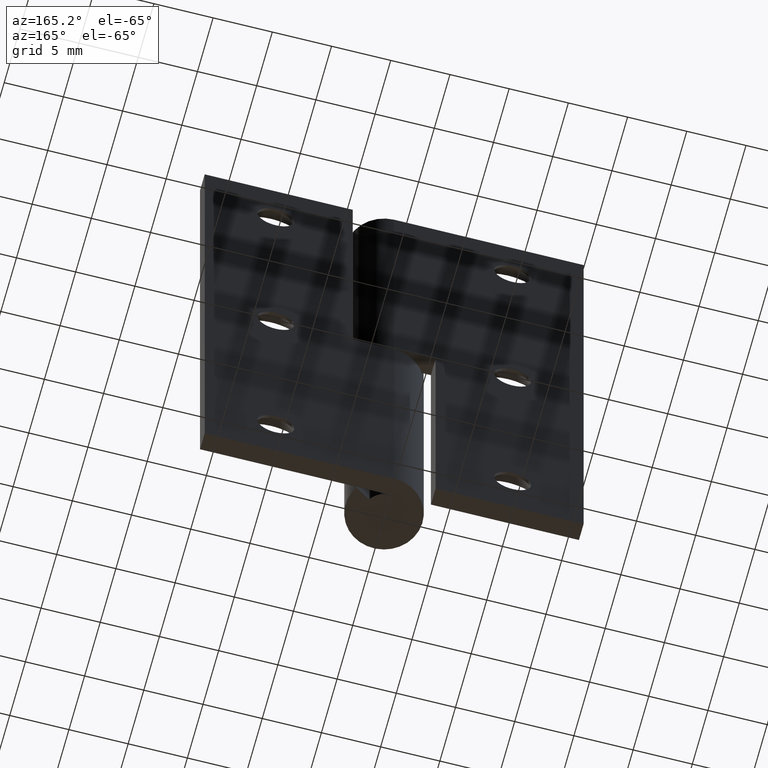
[diagram: clean part render]
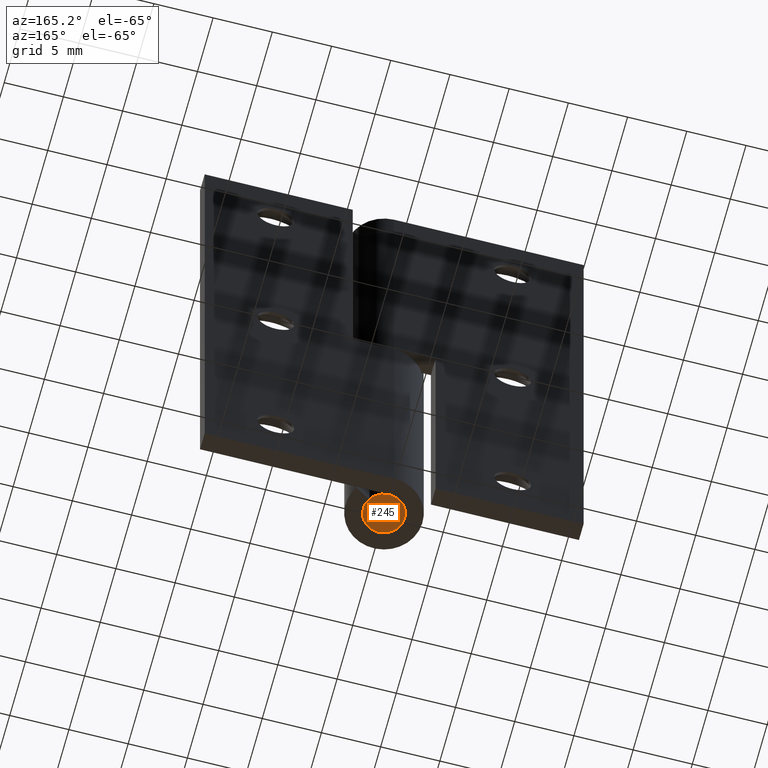
[diagram: same view with one face highlighted and labeled with its STEP entity id]
A machine part, auxiliary view. The second image highlights one B-rep face of the part: STEP entity #245.
In plain terms, the highlighted face is a freeform B-spline surface patch.
Its self-contained STEP definition (entity closure, byte-faithful):
#70=CARTESIAN_POINT('',(-0.206559910792633,1.737766671119382,2.271543E-016));
#71=VERTEX_POINT('',#70);
#72=CARTESIAN_POINT('',(1.750000000000000,0.0,0.0));
#73=VERTEX_POINT('',#72);
#74=CARTESIAN_POINT('',(-0.206559910792632,1.737766671119382,2.271543E-016));
#75=CARTESIAN_POINT('',(-0.103642209535663,1.750000000000000,0.0));
#76=CARTESIAN_POINT('',(0.0,1.750000000000000,0.0));
#77=CARTESIAN_POINT('',(1.750000000000000,1.750000000000000,0.0));
#78=CARTESIAN_POINT('',(1.750000000000000,0.0,0.0));
#86=(BOUNDED_CURVE()B_SPLINE_CURVE(2,(#74,#75,#76,#77,#78),.UNSPECIFIED.,.F.,.U.)B_SPLINE_CURVE_WITH_KNOTS((3,2,3),(0.229562473487771,0.250000000000000,0.500000000000000),.UNSPECIFIED.)CURVE()GEOMETRIC_REPRESENTATION_ITEM()RATIONAL_B_SPLINE_CURVE((0.956026754133252,0.976055948300991,1.0,0.707106781186547,1.0))REPRESENTATION_ITEM(''));
#87=EDGE_CURVE('',#71,#73,#86,.T.);
#128=CARTESIAN_POINT('',(0.106834944193026,-1.746735897237837,3.330669E-016));
#129=VERTEX_POINT('',#128);
#135=CARTESIAN_POINT('',(1.750000000000000,0.0,0.0));
#136=CARTESIAN_POINT('',(1.749999999999999,-1.646235617071689,0.0));
#137=CARTESIAN_POINT('',(0.106834944193026,-1.746735897237837,3.330669E-016));
#145=(BOUNDED_CURVE()B_SPLINE_CURVE(2,(#135,#136,#137),.UNSPECIFIED.,.F.,.U.)B_SPLINE_CURVE_WITH_KNOTS((3,3),(0.500000000000000,0.739332962240579),.UNSPECIFIED.)CURVE()GEOMETRIC_REPRESENTATION_ITEM()RATIONAL_B_SPLINE_CURVE((1.0,0.719603993284793,0.976072041670225))REPRESENTATION_ITEM(''));
#146=EDGE_CURVE('',#73,#129,#145,.T.);
#169=CARTESIAN_POINT('',(-1.750000000000000,0.0,0.0));
#170=VERTEX_POINT('',#169);
#171=CARTESIAN_POINT('',(-1.750000000000000,0.0,0.0));
#172=CARTESIAN_POINT('',(-1.750000000000000,1.554305420156737,0.0));
#173=CARTESIAN_POINT('',(-0.206559910792632,1.737766671119382,2.271543E-016));
#181=(BOUNDED_CURVE()B_SPLINE_CURVE(2,(#171,#172,#173),.UNSPECIFIED.,.F.,.U.)B_SPLINE_CURVE_WITH_KNOTS((3,3),(0.0,0.229562473487771),.UNSPECIFIED.)CURVE()GEOMETRIC_REPRESENTATION_ITEM()RATIONAL_B_SPLINE_CURVE((1.0,0.731050832885556,0.956026754133252))REPRESENTATION_ITEM(''));
#182=EDGE_CURVE('',#170,#71,#181,.T.);
#184=CARTESIAN_POINT('',(0.106834944193026,-1.746735897237837,3.330669E-016));
#185=CARTESIAN_POINT('',(0.053467335779577,-1.750000000000000,0.0));
#186=CARTESIAN_POINT('',(0.0,-1.750000000000000,0.0));
#187=CARTESIAN_POINT('',(-1.750000000000000,-1.750000000000000,0.0));
#188=CARTESIAN_POINT('',(-1.750000000000000,0.0,0.0));
#196=(BOUNDED_CURVE()B_SPLINE_CURVE(2,(#184,#185,#186,#187,#188),.UNSPECIFIED.,.F.,.U.)B_SPLINE_CURVE_WITH_KNOTS((3,2,3),(0.739332962240580,0.750000000000000,1.0),.UNSPECIFIED.)CURVE()GEOMETRIC_REPRESENTATION_ITEM()RATIONAL_B_SPLINE_CURVE((0.976072041670227,0.987502787901756,1.0,0.707106781186547,1.0))REPRESENTATION_ITEM(''));
#197=EDGE_CURVE('',#129,#170,#196,.T.);
#234=CARTESIAN_POINT('',(1.924824993216321,-1.924782399771685,0.0));
#235=CARTESIAN_POINT('',(-1.924825087093636,-1.924782399771685,0.0));
#236=CARTESIAN_POINT('',(1.924824993216321,1.924793164370531,0.0));
#237=CARTESIAN_POINT('',(-1.924825087093636,1.924793164370531,0.0));
#238=B_SPLINE_SURFACE_WITH_KNOTS('',1,1,((#234,#236),(#235,#237)),.UNSPECIFIED.,.F.,.F.,.U.,(2,2),(2,2),(0.0,3.849650080309957),(0.0,3.849575564142215),.UNSPECIFIED.);
#239=ORIENTED_EDGE('',*,*,#182,.T.);
#240=ORIENTED_EDGE('',*,*,#87,.T.);
#241=ORIENTED_EDGE('',*,*,#146,.T.);
#242=ORIENTED_EDGE('',*,*,#197,.T.);
#243=EDGE_LOOP('',(#239,#240,#241,#242));
#244=FACE_OUTER_BOUND('',#243,.T.);
#245=ADVANCED_FACE('',(#244),#238,.T.);